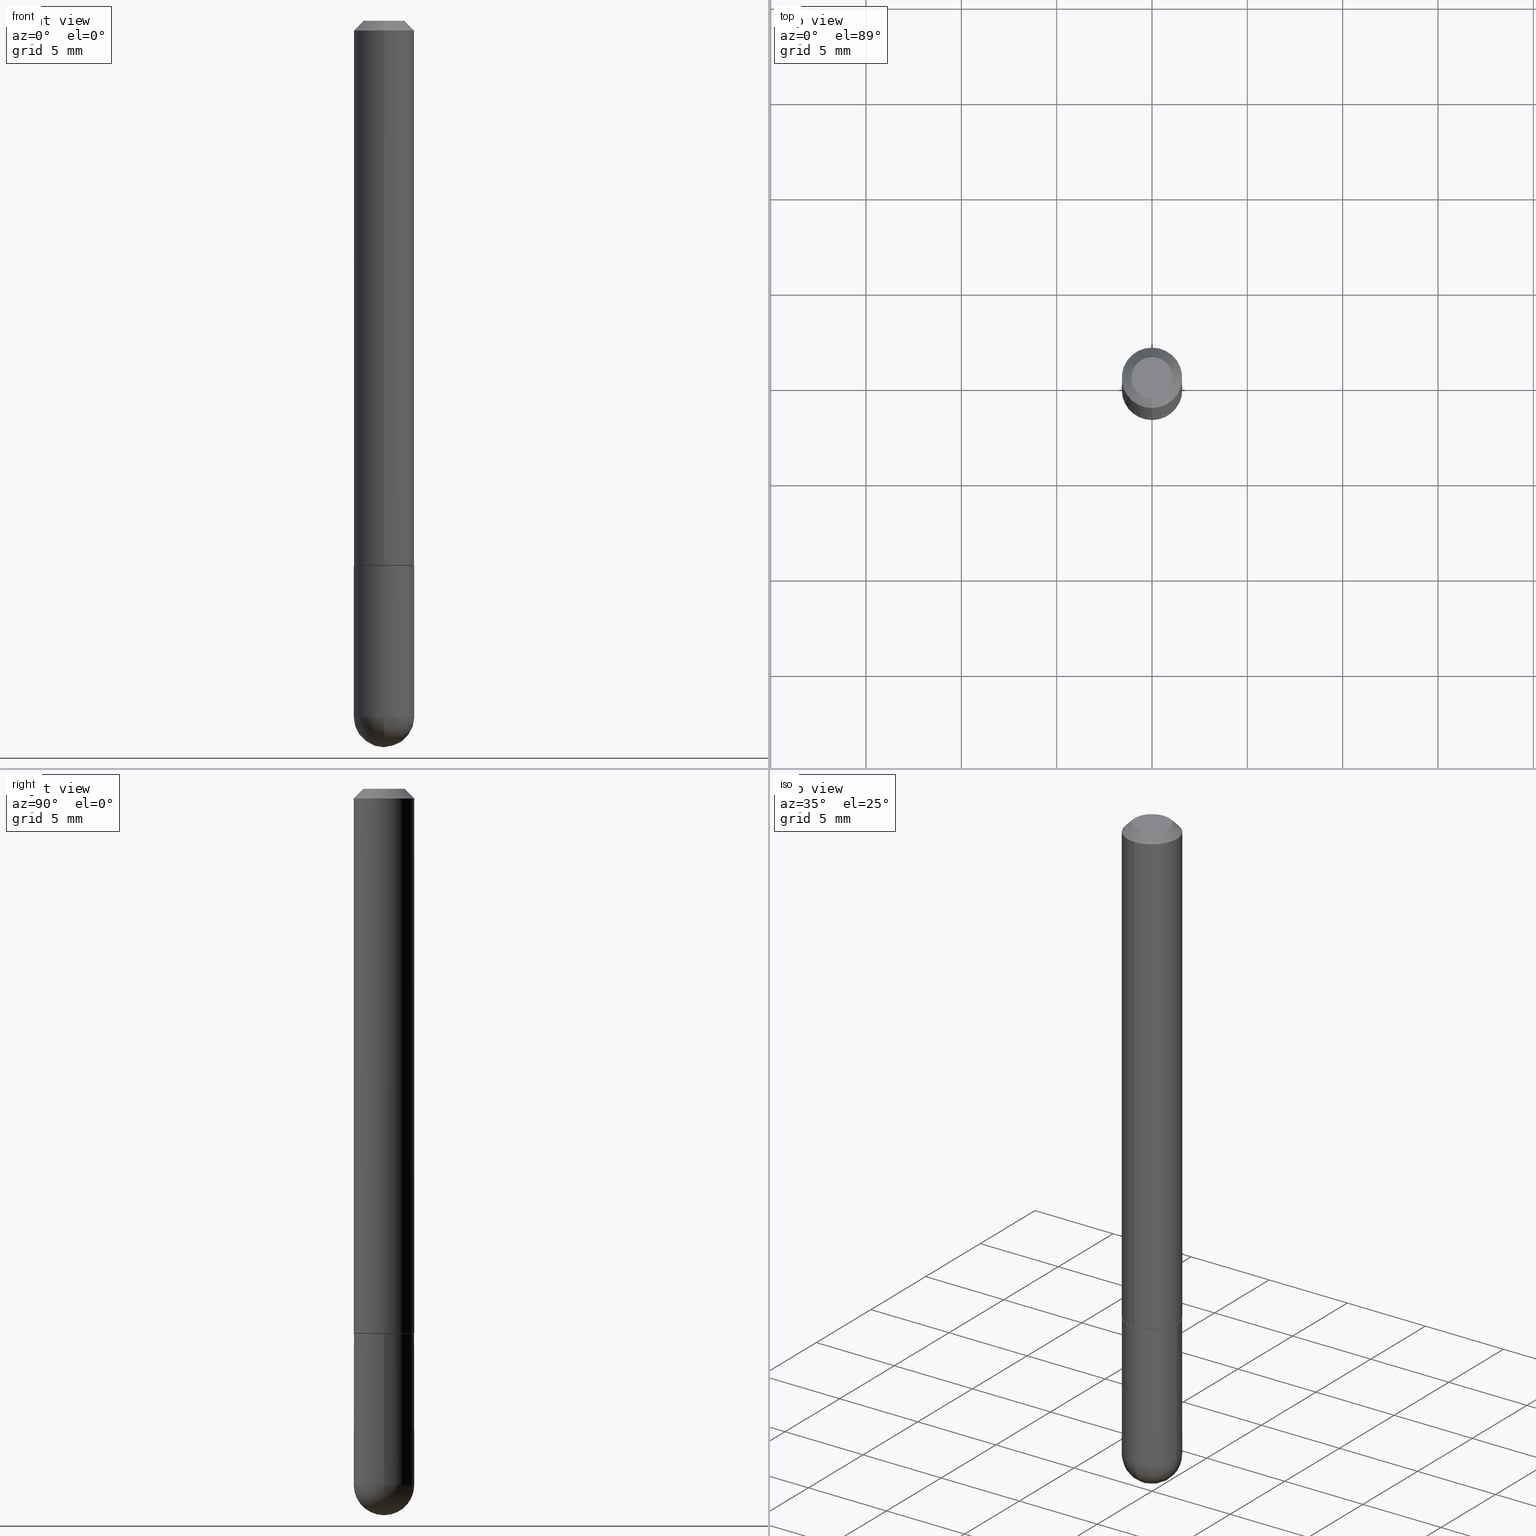
[diagram: canonical four-view strip — front | top / right | iso, engineering-drawing reading convention]
A machine part, canonical four-view strip (front | top / right | iso — engineering-drawing reading convention). The complete STEP part file that produces these views, byte-faithful:
ISO-10303-21;
HEADER;
FILE_DESCRIPTION (( 'STEP AP203' ),
    '1' );
FILE_NAME ('30069.STEP',
    '2024-02-21T16:35:15',
    ( '' ),
    ( '' ),
    'SwSTEP 2.0',
    'SolidWorks 2023',
    '' );
FILE_SCHEMA (( 'CONFIG_CONTROL_DESIGN' ));
ENDSEC;

DATA;
#1 = CARTESIAN_POINT ( 'NONE',  ( -7.232524754975784506E-45, 1.015221231477239649E-30, 2.932652604402424612E-16 ) ) ;
#2 = DIRECTION ( 'NONE',  ( -2.445468806185136597E-29, 3.491481338843145583E-15, 1.000000000000000000 ) ) ;
#3 =( NAMED_UNIT ( * ) PLANE_ANGLE_UNIT ( ) SI_UNIT ( $, .RADIAN. ) );
#4 = AXIS2_PLACEMENT_3D ( 'NONE', #136, #44, #141 ) ;
#5 = EDGE_CURVE ( 'NONE', #178, #274, #163, .T. ) ;
#6 = DIRECTION ( 'NONE',  ( -2.466205763382440609E-29, 3.461784835862300242E-15, 1.000000000000000000 ) ) ;
#7 = APPROVAL_ROLE ( '' ) ;
#8 = COORDINATED_UNIVERSAL_TIME_OFFSET ( 5, 0, .BEHIND. ) ;
#9 = APPROVAL_PERSON_ORGANIZATION ( #170, #313, #42 ) ;
#10 = CC_DESIGN_PERSON_AND_ORGANIZATION_ASSIGNMENT ( #78, #299, ( #330 ) ) ;
#11 = PERSON_AND_ORGANIZATION_ROLE ( 'creator' ) ;
#12 = EDGE_LOOP ( 'NONE', ( #211, #277, #181, #95 ) ) ;
#13 = DIMENSIONAL_EXPONENTS ( 1.000000000000000000, 0.000000000000000000, 0.000000000000000000, 0.000000000000000000, 0.000000000000000000, 0.000000000000000000, 0.000000000000000000 ) ;
#14 = ORIENTED_EDGE ( 'NONE', *, *, #138, .F. ) ;
#15 = CALENDAR_DATE ( 2024, 21, 2 ) ;
#16 = ORIENTED_EDGE ( 'NONE', *, *, #319, .T. ) ;
#17 = CIRCLE ( 'NONE', #133, 0.06249999999999995143 ) ;
#18 = EDGE_LOOP ( 'NONE', ( #113, #216, #244, #397, #333 ) ) ;
#19 = DIRECTION ( 'NONE',  ( -2.445468806185136877E-29, 3.491481338843145188E-15, 1.000000000000000000 ) ) ;
#20 = VERTEX_POINT ( 'NONE', #312 ) ;
#21 = EDGE_CURVE ( 'NONE', #49, #392, #240, .T. ) ;
#22 = DIRECTION ( 'NONE',  ( -6.982962677686265922E-15, -1.000000000000000000, 4.442029257990673709E-15 ) ) ;
#23 = CARTESIAN_POINT ( 'NONE',  ( 3.515361408891134418E-29, -5.019004424587023131E-15, -1.437500000000000222 ) ) ;
#24 = CLOSED_SHELL ( 'NONE', ( #168, #336, #401, #217, #37 ) ) ;
#25 = AXIS2_PLACEMENT_3D ( 'NONE', #399, #92, #185 ) ;
#26 = FACE_OUTER_BOUND ( 'NONE', #213, .T. ) ;
#27 = EDGE_LOOP ( 'NONE', ( #394, #409, #51, #97 ) ) ;
#28 = FACE_OUTER_BOUND ( 'NONE', #335, .T. ) ;
#29 = LINE ( 'NONE', #292, #367 ) ;
#30 = CARTESIAN_POINT ( 'NONE',  ( 2.774481483805245615E-29, -3.894507940345087821E-15, -1.124999999999999778 ) ) ;
#31 = VERTEX_POINT ( 'NONE', #321 ) ;
#32 = CIRCLE ( 'NONE', #269, 0.06249999999999995143 ) ;
#33 = VECTOR ( 'NONE', #89, 39.37007874015748143 ) ;
#34 = CARTESIAN_POINT ( 'NONE',  ( 2.774481483805245615E-29, -3.894507940345087821E-15, -1.124999999999999778 ) ) ;
#35 = DIRECTION ( 'NONE',  ( -2.466205763382440609E-29, 3.461784835862300242E-15, 1.000000000000000000 ) ) ;
#36 = ADVANCED_FACE ( 'NONE', ( #403 ), #73, .T. ) ;
#37 = ADVANCED_FACE ( 'NONE', ( #122 ), #259, .T. ) ;
#38 = CIRCLE ( 'NONE', #265, 0.06249999999999995143 ) ;
#39 = PRODUCT_DEFINITION ( 'UNKNOWN', '', #330, #231 ) ;
#40 = PERSON_AND_ORGANIZATION ( #115, #172 ) ;
#41 = EDGE_CURVE ( 'NONE', #392, #52, #256, .T. ) ;
#42 = APPROVAL_ROLE ( '' ) ;
#43 = LOCAL_TIME ( 11, 35, 15.00000000000000000, #169 ) ;
#44 = DIRECTION ( 'NONE',  ( 0.000000000000000000, 0.000000000000000000, 1.000000000000000000 ) ) ;
#45 = CC_DESIGN_PERSON_AND_ORGANIZATION_ASSIGNMENT ( #272, #332, ( #247 ) ) ;
#46 = APPROVAL_STATUS ( 'not_yet_approved' ) ;
#47 = ORIENTED_EDGE ( 'NONE', *, *, #41, .T. ) ;
#48 = COORDINATED_UNIVERSAL_TIME_OFFSET ( 5, 0, .BEHIND. ) ;
#49 = VERTEX_POINT ( 'NONE', #195 ) ;
#50 = AXIS2_PLACEMENT_3D ( 'NONE', #229, #352, #266 ) ;
#51 = ORIENTED_EDGE ( 'NONE', *, *, #258, .T. ) ;
#52 = VERTEX_POINT ( 'NONE', #381 ) ;
#53 = DIRECTION ( 'NONE',  ( -6.982962677686265922E-15, -1.000000000000000000, 3.461784835862299847E-15 ) ) ;
#54 = ORIENTED_EDGE ( 'NONE', *, *, #300, .T. ) ;
#55 = CARTESIAN_POINT ( 'NONE',  ( 4.364351673553917187E-16, 0.06249999999999988204, -0.02000000000000028491 ) ) ;
#56 = VERTEX_POINT ( 'NONE', #222 ) ;
#57 = CARTESIAN_POINT ( 'NONE',  ( 4.932411526764897788E-31, -6.923569671724623656E-17, -0.02000000000000006981 ) ) ;
#58 = CARTESIAN_POINT ( 'NONE',  ( -4.364351673553916201E-16, -0.06250000000000000000, 2.163615522413937405E-16 ) ) ;
#59 = DIRECTION ( 'NONE',  ( -6.982962677686265922E-15, -1.000000000000000000, 3.483106191921938315E-15 ) ) ;
#60 = CARTESIAN_POINT ( 'NONE',  ( 0.000000000000000000, 0.000000000000000000, 0.000000000000000000 ) ) ;
#61 = ORIENTED_EDGE ( 'NONE', *, *, #138, .T. ) ;
#62 = VECTOR ( 'NONE', #88, 39.37007874015748143 ) ;
#63 = AXIS2_PLACEMENT_3D ( 'NONE', #57, #193, #128 ) ;
#64 = CARTESIAN_POINT ( 'NONE',  ( 2.751152406958278111E-29, -3.927916506198538435E-15, -1.124999999999999778 ) ) ;
#65 = CARTESIAN_POINT ( 'NONE',  ( 2.774481483805245615E-29, -3.894507940345087821E-15, -1.124999999999999778 ) ) ;
#66 = FACE_OUTER_BOUND ( 'NONE', #12, .T. ) ;
#67 = CC_DESIGN_DATE_AND_TIME_ASSIGNMENT ( #386, #206, ( #39 ) ) ;
#68 = DIRECTION ( 'NONE',  ( -2.466205763382440609E-29, 3.461784835862300242E-15, 1.000000000000000000 ) ) ;
#69 = VECTOR ( 'NONE', #155, 39.37007874015748854 ) ;
#70 = APPLICATION_CONTEXT ( 'configuration controlled 3d designs of mechanical parts and assemblies' ) ;
#71 = CIRCLE ( 'NONE', #270, 0.06250000000000005551 ) ;
#72 = DATE_AND_TIME ( #15, #407 ) ;
#73 = CONICAL_SURFACE ( 'NONE', #110, 0.06149999999999997830, 0.7853981633975849475 ) ;
#74 = AXIS2_PLACEMENT_3D ( 'NONE', #220, #87, #53 ) ;
#75 = APPROVAL_STATUS ( 'not_yet_approved' ) ;
#76 = ORIENTED_EDGE ( 'NONE', *, *, #230, .F. ) ;
#77 = EDGE_CURVE ( 'NONE', #20, #178, #264, .T. ) ;
#78 = PERSON_AND_ORGANIZATION ( #115, #172 ) ;
#79 = ORIENTED_EDGE ( 'NONE', *, *, #140, .F. ) ;
#80 = EDGE_LOOP ( 'NONE', ( #76, #334, #116, #248 ) ) ;
#81 = VECTOR ( 'NONE', #318, 39.37007874015748143 ) ;
#82 = CONICAL_SURFACE ( 'NONE', #91, 0.06249999999999995143, 0.7853981633974476129 ) ;
#83 = ORIENTED_EDGE ( 'NONE', *, *, #258, .F. ) ;
#84 = CC_DESIGN_APPROVAL ( #313, ( #247 ) ) ;
#85 = CARTESIAN_POINT ( 'NONE',  ( -4.287811248607198352E-16, -0.06250000000000001388, -0.01999999999999985123 ) ) ;
#86 = CC_DESIGN_PERSON_AND_ORGANIZATION_ASSIGNMENT ( #143, #11, ( #39 ) ) ;
#87 = DIRECTION ( 'NONE',  ( -2.466205763382440609E-29, 3.461784835862300242E-15, 1.000000000000000000 ) ) ;
#88 = DIRECTION ( 'NONE',  ( -2.445468806185136877E-29, 3.491481338843145188E-15, 1.000000000000000000 ) ) ;
#89 = DIRECTION ( 'NONE',  ( -2.466205763382440609E-29, 3.461784835862300242E-15, 1.000000000000000000 ) ) ;
#90 = DIRECTION ( 'NONE',  ( 1.000000000000000000, -6.982962677686267499E-15, 4.876176775795936353E-29 ) ) ;
#91 = AXIS2_PLACEMENT_3D ( 'NONE', #121, #188, #317 ) ;
#92 = DIRECTION ( 'NONE',  ( 2.438088387897960049E-29, -3.491481338843145188E-15, -1.000000000000000000 ) ) ;
#93 = ADVANCED_FACE ( 'NONE', ( #348 ), #344, .F. ) ;
#94 = APPLICATION_CONTEXT ( 'configuration controlled 3d designs of mechanical parts and assemblies' ) ;
#95 = ORIENTED_EDGE ( 'NONE', *, *, #118, .F. ) ;
#96 = CARTESIAN_POINT ( 'NONE',  ( 3.666055405785276810E-16, 0.04249999999999961448, 1.461394049160960420E-16 ) ) ;
#97 = ORIENTED_EDGE ( 'NONE', *, *, #5, .F. ) ;
#98 = DIRECTION ( 'NONE',  ( -2.466205763382440609E-29, 3.461784835862300242E-15, 1.000000000000000000 ) ) ;
#99 = EDGE_CURVE ( 'NONE', #56, #323, #171, .T. ) ;
#100 = DIRECTION ( 'NONE',  ( -2.445468806185136597E-29, 3.491481338843145583E-15, 1.000000000000000000 ) ) ;
#101 = LOCAL_TIME ( 11, 35, 15.00000000000000000, #275 ) ;
#102 = SPHERICAL_SURFACE ( 'NONE', #50, 0.06250000000000018041 ) ;
#103 = CARTESIAN_POINT ( 'NONE',  ( 2.774481483805245615E-29, -3.894507940345087821E-15, -1.124999999999999778 ) ) ;
#104 = DIRECTION ( 'NONE',  ( -6.982962677686265133E-15, -1.000000000000000000, 4.370956789862817205E-15 ) ) ;
#105 =( LENGTH_UNIT ( ) NAMED_UNIT ( * ) SI_UNIT ( $, .METRE. ) );
#106 = LOCAL_TIME ( 11, 35, 15.00000000000000000, #8 ) ;
#107 = PERSON_AND_ORGANIZATION ( #115, #172 ) ;
#108 = DATE_AND_TIME ( #177, #180 ) ;
#109 = EDGE_LOOP ( 'NONE', ( #148, #184, #61, #245 ) ) ;
#110 = AXIS2_PLACEMENT_3D ( 'NONE', #375, #286, #252 ) ;
#111 = CIRCLE ( 'NONE', #119, 0.04249999999999961448 ) ;
#112 = APPROVAL_ROLE ( '' ) ;
#113 = ORIENTED_EDGE ( 'NONE', *, *, #41, .F. ) ;
#114 = ORIENTED_EDGE ( 'NONE', *, *, #99, .F. ) ;
#115 = PERSON ( 'UNSPECIFIED', 'UNSPECIFIED', 'UNSPECIFIED', ('UNSPECIFIED'), ('UNSPECIFIED'), ('UNSPECIFIED') ) ;
#116 = ORIENTED_EDGE ( 'NONE', *, *, #135, .T. ) ;
#117 = LINE ( 'NONE', #288, #33 ) ;
#118 = EDGE_CURVE ( 'NONE', #370, #363, #32, .T. ) ;
#119 = AXIS2_PLACEMENT_3D ( 'NONE', #1, #162, #201 ) ;
#120 = EDGE_LOOP ( 'NONE', ( #16, #209 ) ) ;
#121 = CARTESIAN_POINT ( 'NONE',  ( 4.932411526764897788E-31, -6.923569671724623656E-17, -0.02000000000000006981 ) ) ;
#122 = FACE_OUTER_BOUND ( 'NONE', #18, .T. ) ;
#123 = DIRECTION ( 'NONE',  ( 6.982962677686265922E-15, 1.000000000000000000, -4.370956789862807739E-15 ) ) ;
#124 = ORIENTED_EDGE ( 'NONE', *, *, #364, .T. ) ;
#125 = DIRECTION ( 'NONE',  ( -6.982962677686265922E-15, -1.000000000000000000, 3.483106191921938315E-15 ) ) ;
#126 = DIRECTION ( 'NONE',  ( -4.851104656540959542E-15, -0.7071067811865493491, -0.7071067811865454633 ) ) ;
#127 = AXIS2_PLACEMENT_3D ( 'NONE', #228, #351, #131 ) ;
#128 = DIRECTION ( 'NONE',  ( 6.982962677686265922E-15, 1.000000000000000000, -3.483106191921938315E-15 ) ) ;
#129 = LINE ( 'NONE', #380, #382 ) ;
#130 = FACE_OUTER_BOUND ( 'NONE', #109, .T. ) ;
#131 = DIRECTION ( 'NONE',  ( -6.982962677686266711E-15, -1.000000000000000000, 3.461784835862300242E-15 ) ) ;
#132 = CARTESIAN_POINT ( 'NONE',  ( -0.06249999999999995143, -4.029371255542718167E-15, -1.437500000000000222 ) ) ;
#133 = AXIS2_PLACEMENT_3D ( 'NONE', #285, #369, #125 ) ;
#134 = DIRECTION ( 'NONE',  ( -6.982962677686265133E-15, -1.000000000000000000, 4.370956789862817205E-15 ) ) ;
#135 = EDGE_CURVE ( 'NONE', #31, #239, #159, .T. ) ;
#136 = CARTESIAN_POINT ( 'NONE',  ( 0.000000000000000000, 0.000000000000000000, 0.000000000000000000 ) ) ;
#137 = AXIS2_PLACEMENT_3D ( 'NONE', #103, #6, #260 ) ;
#138 = EDGE_CURVE ( 'NONE', #56, #31, #29, .T. ) ;
#139 = PERSON_AND_ORGANIZATION ( #115, #172 ) ;
#140 = EDGE_CURVE ( 'NONE', #20, #239, #129, .T. ) ;
#141 = DIRECTION ( 'NONE',  ( 1.000000000000000000, 0.000000000000000000, 0.000000000000000000 ) ) ;
#142 = ORIENTED_EDGE ( 'NONE', *, *, #135, .F. ) ;
#143 = PERSON_AND_ORGANIZATION ( #115, #172 ) ;
#144 = ORIENTED_EDGE ( 'NONE', *, *, #364, .F. ) ;
#145 = APPROVAL ( #390, 'UNSPECIFIED' ) ;
#146 = CIRCLE ( 'NONE', #179, 0.06250000000000005551 ) ;
#147 = APPROVAL_DATE_TIME ( #72, #313 ) ;
#148 = ORIENTED_EDGE ( 'NONE', *, *, #300, .F. ) ;
#149 = EDGE_LOOP ( 'NONE', ( #124, #281, #83, #142 ) ) ;
#150 = FACE_OUTER_BOUND ( 'NONE', #27, .T. ) ;
#151 = DIRECTION ( 'NONE',  ( -2.466205763382440609E-29, 3.461784835862300242E-15, 1.000000000000000000 ) ) ;
#152 = DIRECTION ( 'NONE',  ( -2.466205763382440609E-29, 3.461784835862300242E-15, 1.000000000000000000 ) ) ;
#153 = PRODUCT_RELATED_PRODUCT_CATEGORY ( 'detail', '', ( #261 ) ) ;
#154 = CARTESIAN_POINT ( 'NONE',  ( 3.184241630977247611E-29, -5.493186792727071849E-15, -1.437500000000000000 ) ) ;
#155 = DIRECTION ( 'NONE',  ( 4.937700262164543309E-15, 0.7071067811865444641, -0.7071067811865503483 ) ) ;
#156 = DIRECTION ( 'NONE',  ( 6.982962677686266711E-15, 1.000000000000000000, 0.000000000000000000 ) ) ;
#157 = DIRECTION ( 'NONE',  ( 1.000000000000000000, -6.982962677686268288E-15, 0.000000000000000000 ) ) ;
#158 = DIRECTION ( 'NONE',  ( -7.105427357601001859E-15, -1.000000000000000000, 0.000000000000000000 ) ) ;
#159 = LINE ( 'NONE', #58, #81 ) ;
#160 = AXIS2_PLACEMENT_3D ( 'NONE', #65, #152, #284 ) ;
#161 = CC_DESIGN_APPROVAL ( #145, ( #330 ) ) ;
#162 = DIRECTION ( 'NONE',  ( -2.466205763382440609E-29, 3.461784835862300242E-15, 1.000000000000000000 ) ) ;
#163 = LINE ( 'NONE', #227, #69 ) ;
#164 = CARTESIAN_POINT ( 'NONE',  ( 2.772015278041863825E-29, -3.891046155509226174E-15, -1.124000000000000110 ) ) ;
#165 = CARTESIAN_POINT ( 'NONE',  ( 0.000000000000000000, 0.000000000000000000, 0.000000000000000000 ) ) ;
#166 = LENGTH_MEASURE_WITH_UNIT ( LENGTH_MEASURE( 0.02539999999999999897 ), #105 );
#167 = CONICAL_SURFACE ( 'NONE', #63, 0.06249999999999995143, 0.7853981633974476129 ) ;
#168 = ADVANCED_FACE ( 'NONE', ( #378 ), #296, .T. ) ;
#169 = COORDINATED_UNIVERSAL_TIME_OFFSET ( 5, 0, .BEHIND. ) ;
#170 = PERSON_AND_ORGANIZATION ( #115, #172 ) ;
#171 = CIRCLE ( 'NONE', #160, 0.06149999999999997830 ) ;
#172 = ORGANIZATION ( 'UNSPECIFIED', 'UNSPECIFIED', '' ) ;
#173 = APPLICATION_PROTOCOL_DEFINITION ( 'international standard', 'config_control_design', 1994, #70 ) ;
#174 = CALENDAR_DATE ( 2024, 21, 2 ) ;
#175 = EDGE_LOOP ( 'NONE', ( #114, #190 ) ) ;
#176 = EDGE_CURVE ( 'NONE', #274, #239, #207, .T. ) ;
#177 = CALENDAR_DATE ( 2024, 21, 2 ) ;
#178 = VERTEX_POINT ( 'NONE', #96 ) ;
#179 = AXIS2_PLACEMENT_3D ( 'NONE', #325, #98, #134 ) ;
#180 = LOCAL_TIME ( 11, 35, 15.00000000000000000, #48 ) ;
#181 = ORIENTED_EDGE ( 'NONE', *, *, #395, .F. ) ;
#182 = EDGE_CURVE ( 'NONE', #363, #304, #408, .T. ) ;
#183 = CARTESIAN_POINT ( 'NONE',  ( 3.184241630977247611E-29, -5.493186792727071849E-15, -1.437500000000000000 ) ) ;
#184 = ORIENTED_EDGE ( 'NONE', *, *, #210, .T. ) ;
#185 = DIRECTION ( 'NONE',  ( -1.000000000000000000, 6.982962677686265922E-15, -4.876176775795935793E-29 ) ) ;
#186 = ORIENTED_EDGE ( 'NONE', *, *, #223, .F. ) ;
#187 = ADVANCED_FACE ( 'NONE', ( #291 ), #251, .T. ) ;
#188 = DIRECTION ( 'NONE',  ( 2.466205763382440609E-29, -3.461784835862300242E-15, -1.000000000000000000 ) ) ;
#189 = AXIS2_PLACEMENT_3D ( 'NONE', #165, #2, #199 ) ;
#190 = ORIENTED_EDGE ( 'NONE', *, *, #210, .F. ) ;
#191 = DIRECTION ( 'NONE',  ( -2.445468806185136597E-29, 3.491481338843145583E-15, 1.000000000000000000 ) ) ;
#192 = DIRECTION ( 'NONE',  ( -6.982962677686265922E-15, -1.000000000000000000, 3.461784835862300242E-15 ) ) ;
#193 = DIRECTION ( 'NONE',  ( 2.466205763382440609E-29, -3.461784835862300242E-15, -1.000000000000000000 ) ) ;
#194 = ORIENTED_EDGE ( 'NONE', *, *, #271, .T. ) ;
#195 = CARTESIAN_POINT ( 'NONE',  ( 4.364351673554256397E-16, 0.06249999999999480971, -1.437500000000000444 ) ) ;
#196 = AXIS2_PLACEMENT_3D ( 'NONE', #384, #353, #263 ) ;
#197 = ADVANCED_FACE ( 'NONE', ( #28 ), #167, .T. ) ;
#198 = PRODUCT_DEFINITION_SHAPE ( 'NONE', 'NONE',  #39 ) ;
#199 = DIRECTION ( 'NONE',  ( 1.000000000000000000, -6.982962677686267499E-15, 4.876176775795936353E-29 ) ) ;
#200 = DIRECTION ( 'NONE',  ( -6.982962677686265922E-15, -1.000000000000000000, 3.461784835862299847E-15 ) ) ;
#201 = DIRECTION ( 'NONE',  ( -6.982962677686266711E-15, -1.000000000000000000, 3.461784835862300242E-15 ) ) ;
#202 = CLOSED_SHELL ( 'NONE', ( #36, #187, #294, #197, #411, #372, #93, #354 ) ) ;
#203 = CIRCLE ( 'NONE', #196, 0.06249999999999995143 ) ;
#204 = DIRECTION ( 'NONE',  ( 1.000000000000000000, -6.982962677686269077E-15, 0.000000000000000000 ) ) ;
#205 = CC_DESIGN_PERSON_AND_ORGANIZATION_ASSIGNMENT ( #139, #238, ( #330 ) ) ;
#206 = DATE_TIME_ROLE ( 'creation_date' ) ;
#207 = CIRCLE ( 'NONE', #254, 0.06249999999999995143 ) ;
#208 = AXIS2_PLACEMENT_3D ( 'NONE', #280, #309, #156 ) ;
#209 = ORIENTED_EDGE ( 'NONE', *, *, #383, .T. ) ;
#210 = EDGE_CURVE ( 'NONE', #323, #56, #255, .T. ) ;
#211 = ORIENTED_EDGE ( 'NONE', *, *, #271, .F. ) ;
#212 = AXIS2_PLACEMENT_3D ( 'NONE', #64, #268, #204 ) ;
#213 = EDGE_LOOP ( 'NONE', ( #186, #194, #310, #279 ) ) ;
#214 = DIRECTION ( 'NONE',  ( 1.000000000000000000, -6.982962677686268288E-15, 0.000000000000000000 ) ) ;
#215 = MANIFOLD_SOLID_BREP ( 'Body-Move/Copy2[1]', #24 ) ;
#216 = ORIENTED_EDGE ( 'NONE', *, *, #327, .T. ) ;
#217 = ADVANCED_FACE ( 'NONE', ( #320 ), #311, .F. ) ;
#218 = DIRECTION ( 'NONE',  ( -2.445468806185136597E-29, 3.491481338843145583E-15, 1.000000000000000000 ) ) ;
#219 = ORIENTED_EDGE ( 'NONE', *, *, #77, .T. ) ;
#220 = CARTESIAN_POINT ( 'NONE',  ( 0.000000000000000000, 0.000000000000000000, 0.000000000000000000 ) ) ;
#221 = CIRCLE ( 'NONE', #298, 0.06250000000000018041 ) ;
#222 = CARTESIAN_POINT ( 'NONE',  ( -4.294522046776775027E-16, -0.06150000000000387101, -1.124999999999999556 ) ) ;
#223 = EDGE_CURVE ( 'NONE', #225, #49, #314, .T. ) ;
#224 = DIRECTION ( 'NONE',  ( 2.466205763382440609E-29, -3.461784835862300242E-15, -1.000000000000000000 ) ) ;
#225 = VERTEX_POINT ( 'NONE', #404 ) ;
#226 = CARTESIAN_POINT ( 'NONE',  ( 4.440892098500769143E-16, 0.06249999999999615585, -1.124000000000000332 ) ) ;
#227 = CARTESIAN_POINT ( 'NONE',  ( 4.364351673553917187E-16, 0.06249999999999988204, -0.02000000000000028491 ) ) ;
#228 = CARTESIAN_POINT ( 'NONE',  ( -7.232524754975784506E-45, 1.015221231477239649E-30, 2.932652604402424612E-16 ) ) ;
#229 = CARTESIAN_POINT ( 'NONE',  ( 3.184241630977247611E-29, -5.493186792727071849E-15, -1.437500000000000000 ) ) ;
#230 = EDGE_CURVE ( 'NONE', #308, #274, #117, .T. ) ;
#231 = DESIGN_CONTEXT ( 'detailed design', #94, 'design' ) ;
#232 = FACE_OUTER_BOUND ( 'NONE', #80, .T. ) ;
#233 = ADVANCED_BREP_SHAPE_REPRESENTATION ( '30069', ( #215, #339, #4 ), #350 ) ;
#234 = CARTESIAN_POINT ( 'NONE',  ( 0.000000000000000000, 0.000000000000000000, 0.000000000000000000 ) ) ;
#235 = CONICAL_SURFACE ( 'NONE', #137, 0.06149999999999997830, 0.7853981633975849475 ) ;
#236 =( NAMED_UNIT ( * ) SI_UNIT ( $, .STERADIAN. ) SOLID_ANGLE_UNIT ( ) );
#237 = DATE_AND_TIME ( #359, #106 ) ;
#238 = PERSON_AND_ORGANIZATION_ROLE ( 'creator' ) ;
#239 = VERTEX_POINT ( 'NONE', #85 ) ;
#240 = CIRCLE ( 'NONE', #391, 0.06249999999999995143 ) ;
#241 = APPROVAL_PERSON_ORGANIZATION ( #107, #145, #112 ) ;
#242 = SECURITY_CLASSIFICATION_LEVEL ( 'unclassified' ) ;
#243 = ORIENTED_EDGE ( 'NONE', *, *, #395, .T. ) ;
#244 = ORIENTED_EDGE ( 'NONE', *, *, #118, .T. ) ;
#245 = ORIENTED_EDGE ( 'NONE', *, *, #356, .F. ) ;
#246 = CARTESIAN_POINT ( 'NONE',  ( 4.405364961712898701E-16, 0.06149999999999608558, -1.125000000000000222 ) ) ;
#247 = SECURITY_CLASSIFICATION ( '', '', #242 ) ;
#248 = ORIENTED_EDGE ( 'NONE', *, *, #176, .F. ) ;
#249 = CARTESIAN_POINT ( 'NONE',  ( 3.515361408891134418E-29, -5.019004424587023131E-15, -1.437500000000000222 ) ) ;
#250 = CARTESIAN_POINT ( 'NONE',  ( 3.515361408891134418E-29, -5.019004424587023131E-15, -1.437500000000000222 ) ) ;
#251 = CYLINDRICAL_SURFACE ( 'NONE', #74, 0.06250000000000000000 ) ;
#252 = DIRECTION ( 'NONE',  ( -6.982962677686265922E-15, -1.000000000000000000, 4.442029257990673709E-15 ) ) ;
#253 = LINE ( 'NONE', #257, #326 ) ;
#254 = AXIS2_PLACEMENT_3D ( 'NONE', #324, #35, #59 ) ;
#255 = CIRCLE ( 'NONE', #393, 0.06149999999999997830 ) ;
#256 = LINE ( 'NONE', #346, #62 ) ;
#257 = CARTESIAN_POINT ( 'NONE',  ( 4.369837824924891195E-16, 0.06149999999999608558, -1.125000000000000222 ) ) ;
#258 = EDGE_CURVE ( 'NONE', #239, #274, #17, .T. ) ;
#259 = CYLINDRICAL_SURFACE ( 'NONE', #306, 0.06249999999999997918 ) ;
#260 = DIRECTION ( 'NONE',  ( -6.982962677686265922E-15, -1.000000000000000000, 4.442029257990673709E-15 ) ) ;
#261 = PRODUCT ( '30069', '30069', '', ( #329 ) ) ;
#262 = DIRECTION ( 'NONE',  ( -2.466205763382440609E-29, 3.461784835862300242E-15, 1.000000000000000000 ) ) ;
#263 = DIRECTION ( 'NONE',  ( 1.000000000000000000, -6.982962677686268288E-15, 0.000000000000000000 ) ) ;
#264 = CIRCLE ( 'NONE', #127, 0.04249999999999961448 ) ;
#265 = AXIS2_PLACEMENT_3D ( 'NONE', #249, #191, #214 ) ;
#266 = DIRECTION ( 'NONE',  ( 6.982962677686265922E-15, 1.000000000000000000, -4.370956789862807739E-15 ) ) ;
#267 = CC_DESIGN_DATE_AND_TIME_ASSIGNMENT ( #108, #273, ( #247 ) ) ;
#268 = DIRECTION ( 'NONE',  ( -2.445468806185136597E-29, 3.491481338843145583E-15, 1.000000000000000000 ) ) ;
#269 = AXIS2_PLACEMENT_3D ( 'NONE', #250, #400, #157 ) ;
#270 = AXIS2_PLACEMENT_3D ( 'NONE', #164, #295, #104 ) ;
#271 = EDGE_CURVE ( 'NONE', #225, #370, #221, .T. ) ;
#272 = PERSON_AND_ORGANIZATION ( #115, #172 ) ;
#273 = DATE_TIME_ROLE ( 'classification_date' ) ;
#274 = VERTEX_POINT ( 'NONE', #55 ) ;
#275 = COORDINATED_UNIVERSAL_TIME_OFFSET ( 5, 0, .BEHIND. ) ;
#276 = ORIENTED_EDGE ( 'NONE', *, *, #176, .T. ) ;
#277 = ORIENTED_EDGE ( 'NONE', *, *, #223, .T. ) ;
#278 = APPROVAL ( #46, 'UNSPECIFIED' ) ;
#279 = ORIENTED_EDGE ( 'NONE', *, *, #21, .F. ) ;
#280 = CARTESIAN_POINT ( 'NONE',  ( 3.184241630977247611E-29, -5.493186792727071849E-15, -1.437500000000000000 ) ) ;
#281 = ORIENTED_EDGE ( 'NONE', *, *, #230, .T. ) ;
#282 = CC_DESIGN_APPROVAL ( #278, ( #39 ) ) ;
#283 = CARTESIAN_POINT ( 'NONE',  ( 0.06249999999999997918, -4.364351673553915708E-16, 3.047610484872459170E-30 ) ) ;
#284 = DIRECTION ( 'NONE',  ( -6.982962677686265922E-15, -1.000000000000000000, 4.442029257990673709E-15 ) ) ;
#285 = CARTESIAN_POINT ( 'NONE',  ( 4.932411526764897788E-31, -6.923569671724623656E-17, -0.02000000000000006981 ) ) ;
#286 = DIRECTION ( 'NONE',  ( -2.466205763382440609E-29, 3.461784835862300242E-15, 1.000000000000000000 ) ) ;
#287 = UNCERTAINTY_MEASURE_WITH_UNIT (LENGTH_MEASURE( 1.000000000000000082E-05 ), #297, 'distance_accuracy_value', 'NONE');
#288 = CARTESIAN_POINT ( 'NONE',  ( 4.440892098500625669E-16, 0.06250000000000000000, -2.163615522413937405E-16 ) ) ;
#289 = DIRECTION ( 'NONE',  ( -4.937700262165222518E-15, -0.7071067811866417196, 0.7071067811864533148 ) ) ;
#290 = AXIS2_PLACEMENT_3D ( 'NONE', #34, #262, #192 ) ;
#291 = FACE_OUTER_BOUND ( 'NONE', #149, .T. ) ;
#292 = CARTESIAN_POINT ( 'NONE',  ( -4.294522046776775027E-16, -0.06150000000000387101, -1.124999999999999556 ) ) ;
#293 = ORIENTED_EDGE ( 'NONE', *, *, #99, .T. ) ;
#294 = ADVANCED_FACE ( 'NONE', ( #150 ), #82, .T. ) ;
#295 = DIRECTION ( 'NONE',  ( -2.466205763382440609E-29, 3.461784835862300242E-15, 1.000000000000000000 ) ) ;
#296 = CYLINDRICAL_SURFACE ( 'NONE', #189, 0.06249999999999997918 ) ;
#297 =( CONVERSION_BASED_UNIT ( 'INCH', #166 ) LENGTH_UNIT ( ) NAMED_UNIT ( #13 ) );
#298 = AXIS2_PLACEMENT_3D ( 'NONE', #183, #340, #158 ) ;
#299 = PERSON_AND_ORGANIZATION_ROLE ( 'design_supplier' ) ;
#300 = EDGE_CURVE ( 'NONE', #323, #308, #253, .T. ) ;
#301 = COORDINATED_UNIVERSAL_TIME_OFFSET ( 5, 0, .BEHIND. ) ;
#302 = DATE_AND_TIME ( #174, #43 ) ;
#303 = APPROVAL_DATE_TIME ( #302, #278 ) ;
#304 = VERTEX_POINT ( 'NONE', #396 ) ;
#305 = ORIENTED_EDGE ( 'NONE', *, *, #373, .F. ) ;
#306 = AXIS2_PLACEMENT_3D ( 'NONE', #60, #100, #90 ) ;
#307 = AXIS2_PLACEMENT_3D ( 'NONE', #154, #402, #123 ) ;
#308 = VERTEX_POINT ( 'NONE', #226 ) ;
#309 = DIRECTION ( 'NONE',  ( 1.000000000000000000, -6.982962677686265922E-15, 4.883557194083112340E-29 ) ) ;
#310 = ORIENTED_EDGE ( 'NONE', *, *, #327, .F. ) ;
#311 = PLANE ( 'NONE',  #25 ) ;
#312 = CARTESIAN_POINT ( 'NONE',  ( -3.601761448830035670E-16, -0.04249999999999961448, 4.403911159643889051E-16 ) ) ;
#313 = APPROVAL ( #75, 'UNSPECIFIED' ) ;
#314 = CIRCLE ( 'NONE', #208, 0.06250000000000018041 ) ;
#315 = DIRECTION ( 'NONE',  ( 1.000000000000000000, -6.982962677686269077E-15, 0.000000000000000000 ) ) ;
#316 = ORIENTED_EDGE ( 'NONE', *, *, #5, .T. ) ;
#317 = DIRECTION ( 'NONE',  ( 6.982962677686265922E-15, 1.000000000000000000, -3.483106191921938315E-15 ) ) ;
#318 = DIRECTION ( 'NONE',  ( -2.466205763382440609E-29, 3.461784835862300242E-15, 1.000000000000000000 ) ) ;
#319 = EDGE_CURVE ( 'NONE', #304, #52, #406, .T. ) ;
#320 = FACE_OUTER_BOUND ( 'NONE', #120, .T. ) ;
#321 = CARTESIAN_POINT ( 'NONE',  ( -4.364351673553642565E-16, -0.06250000000000394129, -1.123999999999999888 ) ) ;
#322 = CARTESIAN_POINT ( 'NONE',  ( -4.440892098500294840E-16, -0.06250000000000532907, -1.437500000000000000 ) ) ;
#323 = VERTEX_POINT ( 'NONE', #246 ) ;
#324 = CARTESIAN_POINT ( 'NONE',  ( 4.932411526764897788E-31, -6.923569671724623656E-17, -0.02000000000000006981 ) ) ;
#325 = CARTESIAN_POINT ( 'NONE',  ( 2.772015278041863825E-29, -3.891046155509226174E-15, -1.124000000000000110 ) ) ;
#326 = VECTOR ( 'NONE', #379, 39.37007874015748143 ) ;
#327 = EDGE_CURVE ( 'NONE', #392, #370, #38, .T. ) ;
#328 = APPROVAL_DATE_TIME ( #237, #145 ) ;
#329 = MECHANICAL_CONTEXT ( 'NONE', #70, 'mechanical' ) ;
#330 = PRODUCT_DEFINITION_FORMATION_WITH_SPECIFIED_SOURCE ( 'ANY', '', #261, .NOT_KNOWN. ) ;
#331 = ORIENTED_EDGE ( 'NONE', *, *, #319, .F. ) ;
#332 = PERSON_AND_ORGANIZATION_ROLE ( 'classification_officer' ) ;
#333 = ORIENTED_EDGE ( 'NONE', *, *, #383, .F. ) ;
#334 = ORIENTED_EDGE ( 'NONE', *, *, #356, .T. ) ;
#335 = EDGE_LOOP ( 'NONE', ( #79, #305, #316, #276 ) ) ;
#336 = ADVANCED_FACE ( 'NONE', ( #26 ), #337, .T. ) ;
#337 = SPHERICAL_SURFACE ( 'NONE', #307, 0.06250000000000018041 ) ;
#338 = EDGE_LOOP ( 'NONE', ( #293, #54, #144, #14 ) ) ;
#339 = MANIFOLD_SOLID_BREP ( 'Body-Move/Copy2[2]', #202 ) ;
#340 = DIRECTION ( 'NONE',  ( -1.000000000000000000, 7.105427357601001070E-15, -4.926315508542082329E-29 ) ) ;
#341 = ORIENTED_EDGE ( 'NONE', *, *, #182, .F. ) ;
#342 = VECTOR ( 'NONE', #19, 39.37007874015748143 ) ;
#343 = PLANE ( 'NONE',  #355 ) ;
#344 = PLANE ( 'NONE',  #290 ) ;
#345 = DIRECTION ( 'NONE',  ( 6.982962677686265922E-15, 1.000000000000000000, -3.461784835862300242E-15 ) ) ;
#346 = CARTESIAN_POINT ( 'NONE',  ( -0.06249999999999997918, 4.440892098500624683E-16, -3.074334431409315413E-30 ) ) ;
#347 = CARTESIAN_POINT ( 'NONE',  ( 2.751152406958278111E-29, -3.927916506198538435E-15, -1.124999999999999778 ) ) ;
#348 = FACE_OUTER_BOUND ( 'NONE', #175, .T. ) ;
#349 = CARTESIAN_POINT ( 'NONE',  ( 0.06249999999999995143, -4.909895632748172453E-15, -1.437500000000000222 ) ) ;
#350 =( GEOMETRIC_REPRESENTATION_CONTEXT ( 3 ) GLOBAL_UNCERTAINTY_ASSIGNED_CONTEXT ( ( #287 ) ) GLOBAL_UNIT_ASSIGNED_CONTEXT ( ( #297, #3, #236 ) ) REPRESENTATION_CONTEXT ( 'NONE', 'WORKASPACE' ) );
#351 = DIRECTION ( 'NONE',  ( -2.466205763382440609E-29, 3.461784835862300242E-15, 1.000000000000000000 ) ) ;
#352 = DIRECTION ( 'NONE',  ( -1.000000000000000000, 6.982962677686265922E-15, -4.883557194083112340E-29 ) ) ;
#353 = DIRECTION ( 'NONE',  ( -2.445468806185136597E-29, 3.491481338843145583E-15, 1.000000000000000000 ) ) ;
#354 = ADVANCED_FACE ( 'NONE', ( #374 ), #343, .F. ) ;
#355 = AXIS2_PLACEMENT_3D ( 'NONE', #377, #224, #345 ) ;
#356 = EDGE_CURVE ( 'NONE', #308, #31, #146, .T. ) ;
#357 = CALENDAR_DATE ( 2024, 21, 2 ) ;
#358 = PERSON_AND_ORGANIZATION_ROLE ( 'design_owner' ) ;
#359 = CALENDAR_DATE ( 2024, 21, 2 ) ;
#360 = AXIS2_PLACEMENT_3D ( 'NONE', #234, #68, #200 ) ;
#361 = CC_DESIGN_PERSON_AND_ORGANIZATION_ASSIGNMENT ( #40, #358, ( #261 ) ) ;
#362 = APPLICATION_PROTOCOL_DEFINITION ( 'international standard', 'config_control_design', 1994, #94 ) ;
#363 = VERTEX_POINT ( 'NONE', #349 ) ;
#364 = EDGE_CURVE ( 'NONE', #31, #308, #71, .T. ) ;
#365 = EDGE_LOOP ( 'NONE', ( #366, #219 ) ) ;
#366 = ORIENTED_EDGE ( 'NONE', *, *, #373, .T. ) ;
#367 = VECTOR ( 'NONE', #289, 39.37007874015748143 ) ;
#368 = CC_DESIGN_SECURITY_CLASSIFICATION ( #247, ( #330 ) ) ;
#369 = DIRECTION ( 'NONE',  ( -2.466205763382440609E-29, 3.461784835862300242E-15, 1.000000000000000000 ) ) ;
#370 = VERTEX_POINT ( 'NONE', #322 ) ;
#371 = DIRECTION ( 'NONE',  ( -2.445468806185136597E-29, 3.491481338843145583E-15, 1.000000000000000000 ) ) ;
#372 = ADVANCED_FACE ( 'NONE', ( #130 ), #235, .T. ) ;
#373 = EDGE_CURVE ( 'NONE', #178, #20, #111, .T. ) ;
#374 = FACE_OUTER_BOUND ( 'NONE', #365, .T. ) ;
#375 = CARTESIAN_POINT ( 'NONE',  ( 2.774481483805245615E-29, -3.894507940345087821E-15, -1.124999999999999778 ) ) ;
#376 = CIRCLE ( 'NONE', #212, 0.06250000000000001388 ) ;
#377 = CARTESIAN_POINT ( 'NONE',  ( 2.967759138016636432E-16, 0.04249999999999961448, -4.932253040251829107E-19 ) ) ;
#378 = FACE_OUTER_BOUND ( 'NONE', #405, .T. ) ;
#379 = DIRECTION ( 'NONE',  ( 5.024295867788748699E-15, 0.7071067811866466046, 0.7071067811864484298 ) ) ;
#380 = CARTESIAN_POINT ( 'NONE',  ( -4.287811248607198352E-16, -0.06250000000000001388, -0.01999999999999985123 ) ) ;
#381 = CARTESIAN_POINT ( 'NONE',  ( -0.06250000000000001388, -4.029371255542718167E-15, -1.124999999999999778 ) ) ;
#382 = VECTOR ( 'NONE', #126, 39.37007874015748854 ) ;
#383 = EDGE_CURVE ( 'NONE', #52, #304, #376, .T. ) ;
#384 = CARTESIAN_POINT ( 'NONE',  ( 3.515361408891134418E-29, -5.019004424587023131E-15, -1.437500000000000222 ) ) ;
#385 = AXIS2_PLACEMENT_3D ( 'NONE', #347, #218, #315 ) ;
#386 = DATE_AND_TIME ( #357, #101 ) ;
#387 = SHAPE_DEFINITION_REPRESENTATION ( #198, #233 ) ;
#388 = PERSON_AND_ORGANIZATION ( #115, #172 ) ;
#389 = ORIENTED_EDGE ( 'NONE', *, *, #21, .T. ) ;
#390 = APPROVAL_STATUS ( 'not_yet_approved' ) ;
#391 = AXIS2_PLACEMENT_3D ( 'NONE', #23, #371, #412 ) ;
#392 = VERTEX_POINT ( 'NONE', #132 ) ;
#393 = AXIS2_PLACEMENT_3D ( 'NONE', #30, #151, #22 ) ;
#394 = ORIENTED_EDGE ( 'NONE', *, *, #77, .F. ) ;
#395 = EDGE_CURVE ( 'NONE', #363, #49, #203, .T. ) ;
#396 = CARTESIAN_POINT ( 'NONE',  ( 0.06250000000000001388, -4.364351673553930105E-15, -1.124999999999999778 ) ) ;
#397 = ORIENTED_EDGE ( 'NONE', *, *, #182, .T. ) ;
#398 = APPROVAL_PERSON_ORGANIZATION ( #388, #278, #7 ) ;
#399 = CARTESIAN_POINT ( 'NONE',  ( 4.364351673554192795E-16, 0.06249999999999608646, -1.125000000000000222 ) ) ;
#400 = DIRECTION ( 'NONE',  ( -2.445468806185136597E-29, 3.491481338843145583E-15, 1.000000000000000000 ) ) ;
#401 = ADVANCED_FACE ( 'NONE', ( #66 ), #102, .T. ) ;
#402 = DIRECTION ( 'NONE',  ( -1.000000000000000000, 6.982962677686265922E-15, -4.883557194083112340E-29 ) ) ;
#403 = FACE_OUTER_BOUND ( 'NONE', #338, .T. ) ;
#404 = CARTESIAN_POINT ( 'NONE',  ( 3.339755826017505008E-29, -5.707577355157432999E-15, -1.500000000000000222 ) ) ;
#405 = EDGE_LOOP ( 'NONE', ( #389, #47, #331, #341, #243 ) ) ;
#406 = CIRCLE ( 'NONE', #385, 0.06250000000000001388 ) ;
#407 = LOCAL_TIME ( 11, 35, 15.00000000000000000, #301 ) ;
#408 = LINE ( 'NONE', #283, #342 ) ;
#409 = ORIENTED_EDGE ( 'NONE', *, *, #140, .T. ) ;
#410 = CYLINDRICAL_SURFACE ( 'NONE', #360, 0.06250000000000000000 ) ;
#411 = ADVANCED_FACE ( 'NONE', ( #232 ), #410, .T. ) ;
#412 = DIRECTION ( 'NONE',  ( 1.000000000000000000, -6.982962677686268288E-15, 0.000000000000000000 ) ) ;
ENDSEC;
END-ISO-10303-21;
